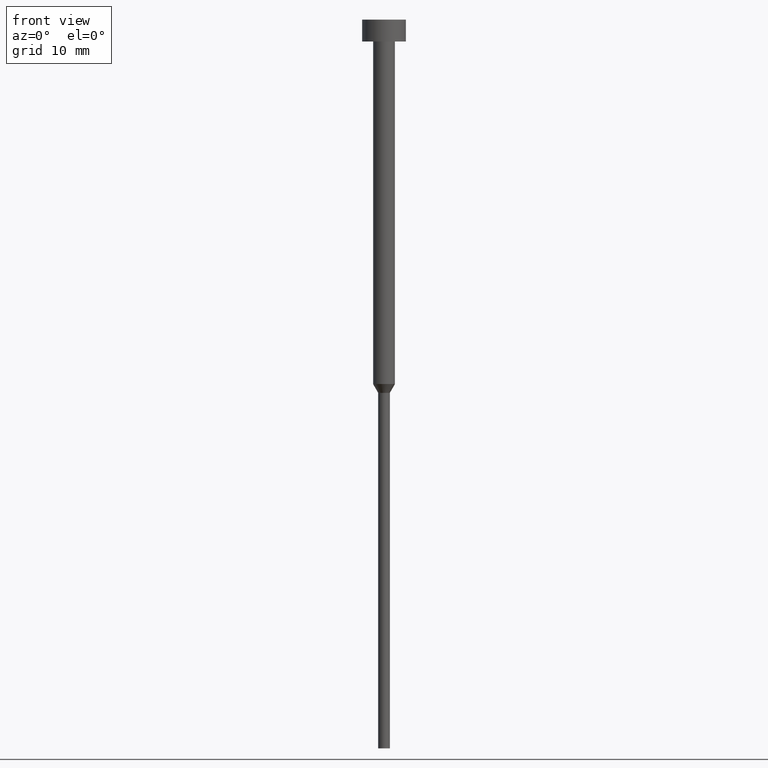
[diagram: clean part render]
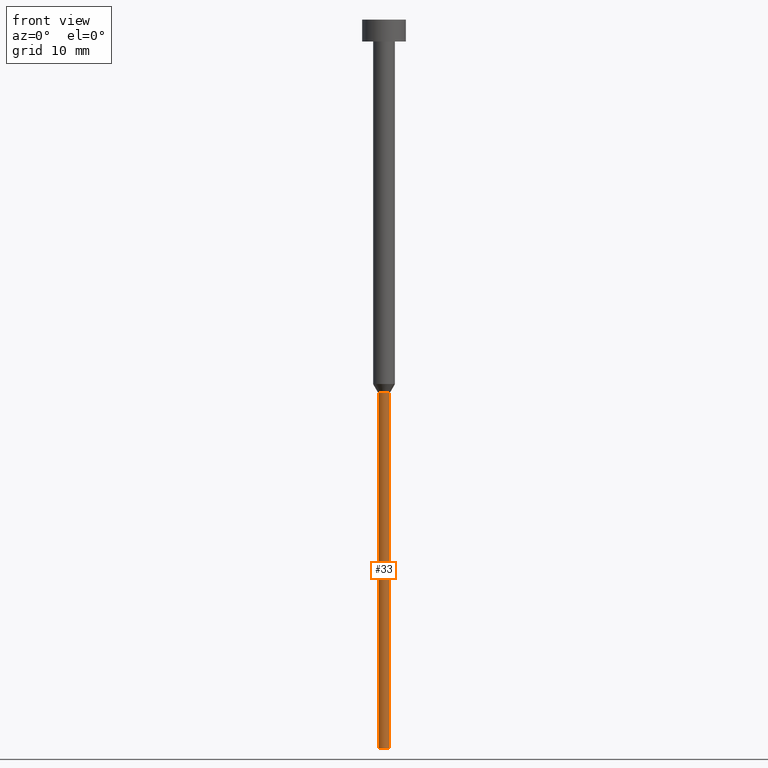
[diagram: same view with one face highlighted and labeled with its STEP entity id]
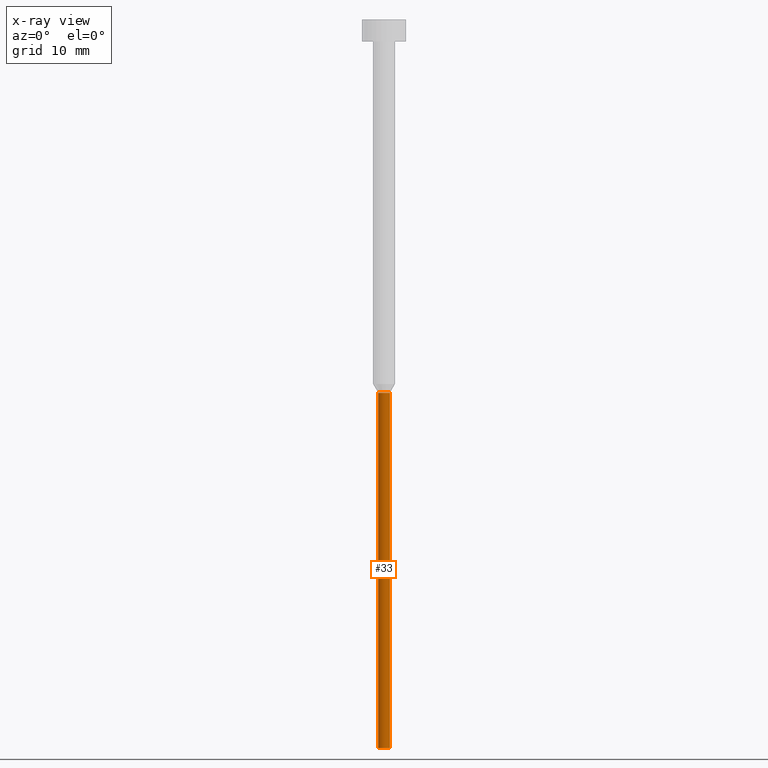
[diagram: x-ray of the same camera — body ghosted, the highlighted face saturated]
A machine part, front view. The second image highlights one B-rep face of the part: STEP entity #33.
The next image is the same camera in x-ray: the body ghosted, the highlighted face saturated — about 0% of this face is hidden behind the body in this view.
In plain terms, the highlighted cylindrical surface (edge-blend (fillet) strip) has radius 0.8 mm, axis along (-0, -0, 1).
Its self-contained STEP definition (entity closure, byte-faithful):
#3 = DIRECTION ( 'NONE',  ( -0.000000000000000000, -0.000000000000000000, 1.000000000000000000 ) ) ;
#29 = CARTESIAN_POINT ( 'NONE',  ( -0.7999999999999999334, 9.797174393178826150E-17, -100.0000000000000000 ) ) ;
#33 = ADVANCED_FACE ( 'NONE', ( #176 ), #151, .T. ) ;
#51 = CIRCLE ( 'NONE', #242, 0.8000000000000001554 ) ;
#69 = DIRECTION ( 'NONE',  ( -0.000000000000000000, -0.000000000000000000, 1.000000000000000000 ) ) ;
#73 = CARTESIAN_POINT ( 'NONE',  ( 0.8000000000000000444, 0.000000000000000000, 0.000000000000000000 ) ) ;
#81 = DIRECTION ( 'NONE',  ( 1.000000000000000000, 0.000000000000000000, 0.000000000000000000 ) ) ;
#84 = VECTOR ( 'NONE', #288, 1000.000000000000000 ) ;
#90 = VERTEX_POINT ( 'NONE', #177 ) ;
#103 = AXIS2_PLACEMENT_3D ( 'NONE', #355, #3, #138 ) ;
#111 = CARTESIAN_POINT ( 'NONE',  ( 0.000000000000000000, 0.000000000000000000, -51.21243556529821461 ) ) ;
#131 = EDGE_CURVE ( 'NONE', #333, #330, #228, .T. ) ;
#133 = ORIENTED_EDGE ( 'NONE', *, *, #307, .T. ) ;
#138 = DIRECTION ( 'NONE',  ( 1.000000000000000000, 0.000000000000000000, 0.000000000000000000 ) ) ;
#151 = CYLINDRICAL_SURFACE ( 'NONE', #283, 0.8000000000000000444 ) ;
#153 = CARTESIAN_POINT ( 'NONE',  ( 0.000000000000000000, 0.000000000000000000, 0.000000000000000000 ) ) ;
#159 = CIRCLE ( 'NONE', #103, 0.7999999999999999334 ) ;
#176 = FACE_OUTER_BOUND ( 'NONE', #338, .T. ) ;
#177 = CARTESIAN_POINT ( 'NONE',  ( 0.8000000000000001554, 0.000000000000000000, -51.21243556529821461 ) ) ;
#180 = DIRECTION ( 'NONE',  ( -0.000000000000000000, -0.000000000000000000, 1.000000000000000000 ) ) ;
#186 = CARTESIAN_POINT ( 'NONE',  ( 0.7999999999999999334, 0.000000000000000000, -100.0000000000000000 ) ) ;
#196 = VERTEX_POINT ( 'NONE', #186 ) ;
#200 = DIRECTION ( 'NONE',  ( 1.000000000000000000, 0.000000000000000000, 0.000000000000000000 ) ) ;
#215 = EDGE_CURVE ( 'NONE', #333, #196, #159, .T. ) ;
#217 = VECTOR ( 'NONE', #180, 1000.000000000000000 ) ;
#219 = ORIENTED_EDGE ( 'NONE', *, *, #347, .F. ) ;
#228 = LINE ( 'NONE', #315, #84 ) ;
#242 = AXIS2_PLACEMENT_3D ( 'NONE', #111, #329, #81 ) ;
#274 = ORIENTED_EDGE ( 'NONE', *, *, #131, .F. ) ;
#283 = AXIS2_PLACEMENT_3D ( 'NONE', #153, #69, #200 ) ;
#288 = DIRECTION ( 'NONE',  ( -0.000000000000000000, -0.000000000000000000, 1.000000000000000000 ) ) ;
#305 = ORIENTED_EDGE ( 'NONE', *, *, #215, .T. ) ;
#307 = EDGE_CURVE ( 'NONE', #196, #90, #324, .T. ) ;
#315 = CARTESIAN_POINT ( 'NONE',  ( -0.8000000000000000444, 9.797174393178826150E-17, 0.000000000000000000 ) ) ;
#324 = LINE ( 'NONE', #73, #217 ) ;
#326 = CARTESIAN_POINT ( 'NONE',  ( -0.8000000000000002665, 9.797174393178828616E-17, -51.21243556529821461 ) ) ;
#329 = DIRECTION ( 'NONE',  ( -0.000000000000000000, -0.000000000000000000, 1.000000000000000000 ) ) ;
#330 = VERTEX_POINT ( 'NONE', #326 ) ;
#333 = VERTEX_POINT ( 'NONE', #29 ) ;
#338 = EDGE_LOOP ( 'NONE', ( #274, #305, #133, #219 ) ) ;
#347 = EDGE_CURVE ( 'NONE', #330, #90, #51, .T. ) ;
#355 = CARTESIAN_POINT ( 'NONE',  ( 0.000000000000000000, 0.000000000000000000, -100.0000000000000000 ) ) ;